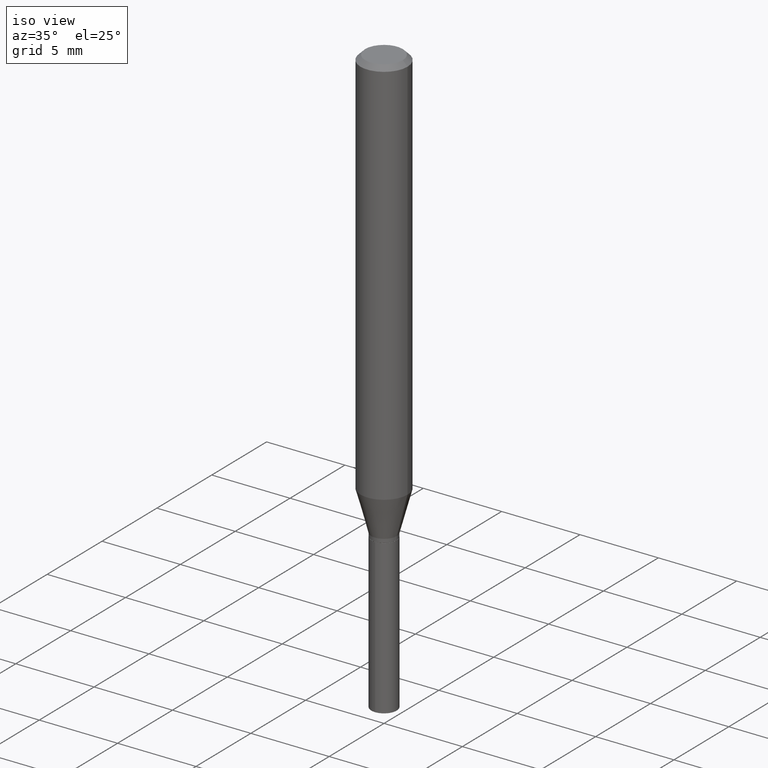
[diagram: clean part render]
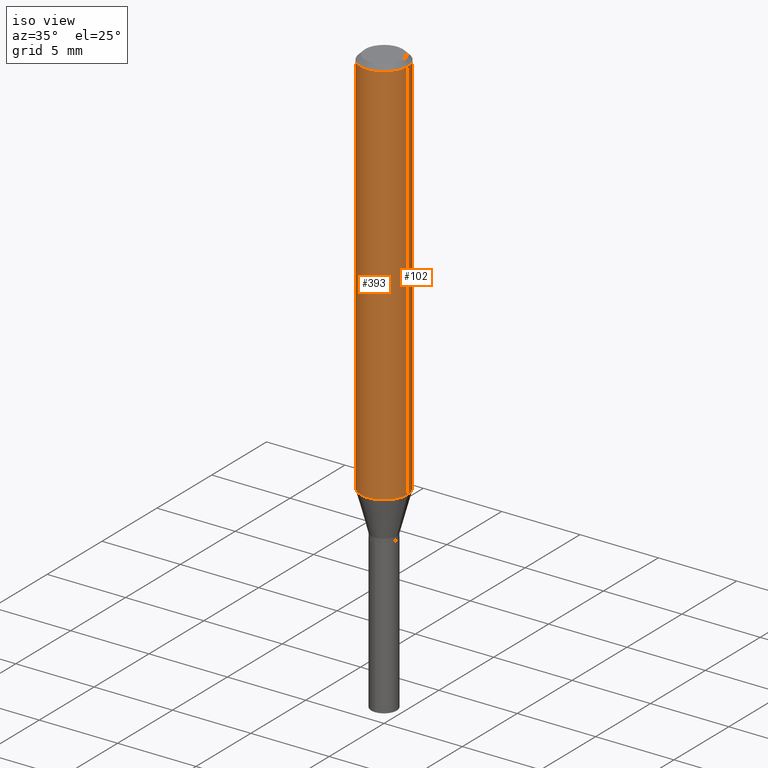
[diagram: same view with one multi-face feature highlighted, each face labeled with its STEP entity id]
A machine part, iso view. The highlighted faces form ONE feature: a constant-radius fillet chain: 2 tangent blend faces with common blend radius 1.4999 mm. The faces share edges in the B-rep.
Their STEP definitions:
[1] entity #102 (Cylinder):
#30 = AXIS2_PLACEMENT_3D ( 'NONE', #70, #67, #418 ) ;
#47 = ORIENTED_EDGE ( 'NONE', *, *, #278, .T. ) ;
#67 = DIRECTION ( 'NONE',  ( -2.445468806185136597E-29, 3.491481338843145583E-15, 1.000000000000000000 ) ) ;
#70 = CARTESIAN_POINT ( 'NONE',  ( 2.405301542264094135E-29, -3.434133131391878685E-15, -0.9835748205745047379 ) ) ;
#81 = CARTESIAN_POINT ( 'NONE',  ( 0.000000000000000000, 0.000000000000000000, 0.000000000000000000 ) ) ;
#102 = ADVANCED_FACE ( 'NONE', ( #394 ), #233, .T. ) ;
#138 = CIRCLE ( 'NONE', #30, 0.05905000000000011628 ) ;
#149 = VECTOR ( 'NONE', #328, 39.37007874015748143 ) ;
#179 = DIRECTION ( 'NONE',  ( -2.445468806185136877E-29, 3.491481338843145188E-15, 1.000000000000000000 ) ) ;
#182 = VERTEX_POINT ( 'NONE', #369 ) ;
#184 = EDGE_CURVE ( 'NONE', #439, #427, #284, .T. ) ;
#185 = AXIS2_PLACEMENT_3D ( 'NONE', #81, #272, #197 ) ;
#197 = DIRECTION ( 'NONE',  ( 1.000000000000000000, -6.982962677686266711E-15, 4.876176775795935793E-29 ) ) ;
#210 = EDGE_CURVE ( 'NONE', #182, #232, #281, .T. ) ;
#228 = DIRECTION ( 'NONE',  ( -2.445468806185136597E-29, 3.491481338843145583E-15, 1.000000000000000000 ) ) ;
#232 = VERTEX_POINT ( 'NONE', #248 ) ;
#233 = CYLINDRICAL_SURFACE ( 'NONE', #185, 0.05905000000000006077 ) ;
#234 = EDGE_LOOP ( 'NONE', ( #47, #260, #461, #306 ) ) ;
#248 = CARTESIAN_POINT ( 'NONE',  ( 0.05904999999999999832, -4.535783407291118600E-16, -0.01181000000000007218 ) ) ;
#250 = CARTESIAN_POINT ( 'NONE',  ( 0.05905000000000006077, -4.123439461173744764E-16, 2.879382386107503023E-30 ) ) ;
#260 = ORIENTED_EDGE ( 'NONE', *, *, #184, .T. ) ;
#272 = DIRECTION ( 'NONE',  ( -2.445468806185136597E-29, 3.491481338843145583E-15, 1.000000000000000000 ) ) ;
#278 = EDGE_CURVE ( 'NONE', #182, #439, #138, .T. ) ;
#281 = LINE ( 'NONE', #250, #149 ) ;
#284 = LINE ( 'NONE', #365, #381 ) ;
#306 = ORIENTED_EDGE ( 'NONE', *, *, #210, .F. ) ;
#327 = CIRCLE ( 'NONE', #383, 0.05904999999999999832 ) ;
#328 = DIRECTION ( 'NONE',  ( -2.445468806185136877E-29, 3.491481338843145188E-15, 1.000000000000000000 ) ) ;
#340 = CARTESIAN_POINT ( 'NONE',  ( -0.05905000000000011628, -3.014557645925538404E-15, -0.9835748205745047379 ) ) ;
#365 = CARTESIAN_POINT ( 'NONE',  ( -0.05905000000000006077, 4.195754854663395916E-16, -2.904631170795524694E-30 ) ) ;
#369 = CARTESIAN_POINT ( 'NONE',  ( 0.05905000000000011628, -3.846477077509253606E-15, -0.9835748205745047379 ) ) ;
#381 = VECTOR ( 'NONE', #179, 39.37007874015748143 ) ;
#383 = AXIS2_PLACEMENT_3D ( 'NONE', #398, #228, #390 ) ;
#390 = DIRECTION ( 'NONE',  ( 1.000000000000000000, -6.982962677686266711E-15, 0.000000000000000000 ) ) ;
#394 = FACE_OUTER_BOUND ( 'NONE', #234, .T. ) ;
#398 = CARTESIAN_POINT ( 'NONE',  ( 2.888098660104664204E-31, -4.123439461173780263E-17, -0.01181000000000007218 ) ) ;
#418 = DIRECTION ( 'NONE',  ( 1.000000000000000000, -6.982962677686266711E-15, 0.000000000000000000 ) ) ;
#427 = VERTEX_POINT ( 'NONE', #490 ) ;
#439 = VERTEX_POINT ( 'NONE', #340 ) ;
#461 = ORIENTED_EDGE ( 'NONE', *, *, #489, .F. ) ;
#489 = EDGE_CURVE ( 'NONE', #232, #427, #327, .T. ) ;
#490 = CARTESIAN_POINT ( 'NONE',  ( -0.05904999999999999832, -1.318108277535467925E-15, -0.01181000000000007218 ) ) ;
[2] entity #393 (Cylinder):
#18 = DIRECTION ( 'NONE',  ( -2.445468806185136597E-29, 3.491481338843145583E-15, 1.000000000000000000 ) ) ;
#48 = AXIS2_PLACEMENT_3D ( 'NONE', #192, #457, #119 ) ;
#51 = EDGE_CURVE ( 'NONE', #427, #232, #416, .T. ) ;
#82 = EDGE_LOOP ( 'NONE', ( #231, #429, #359, #403 ) ) ;
#119 = DIRECTION ( 'NONE',  ( 1.000000000000000000, -6.982962677686266711E-15, 0.000000000000000000 ) ) ;
#149 = VECTOR ( 'NONE', #328, 39.37007874015748143 ) ;
#157 = CARTESIAN_POINT ( 'NONE',  ( 2.888098660104664204E-31, -4.123439461173780263E-17, -0.01181000000000007218 ) ) ;
#169 = DIRECTION ( 'NONE',  ( 1.000000000000000000, -6.982962677686266711E-15, 0.000000000000000000 ) ) ;
#179 = DIRECTION ( 'NONE',  ( -2.445468806185136877E-29, 3.491481338843145188E-15, 1.000000000000000000 ) ) ;
#182 = VERTEX_POINT ( 'NONE', #369 ) ;
#184 = EDGE_CURVE ( 'NONE', #439, #427, #284, .T. ) ;
#189 = FACE_OUTER_BOUND ( 'NONE', #82, .T. ) ;
#192 = CARTESIAN_POINT ( 'NONE',  ( 2.405301542264094135E-29, -3.434133131391878685E-15, -0.9835748205745047379 ) ) ;
#210 = EDGE_CURVE ( 'NONE', #182, #232, #281, .T. ) ;
#219 = AXIS2_PLACEMENT_3D ( 'NONE', #411, #484, #257 ) ;
#231 = ORIENTED_EDGE ( 'NONE', *, *, #184, .F. ) ;
#232 = VERTEX_POINT ( 'NONE', #248 ) ;
#248 = CARTESIAN_POINT ( 'NONE',  ( 0.05904999999999999832, -4.535783407291118600E-16, -0.01181000000000007218 ) ) ;
#250 = CARTESIAN_POINT ( 'NONE',  ( 0.05905000000000006077, -4.123439461173744764E-16, 2.879382386107503023E-30 ) ) ;
#257 = DIRECTION ( 'NONE',  ( 1.000000000000000000, -6.982962677686266711E-15, 4.876176775795935793E-29 ) ) ;
#281 = LINE ( 'NONE', #250, #149 ) ;
#284 = LINE ( 'NONE', #365, #381 ) ;
#328 = DIRECTION ( 'NONE',  ( -2.445468806185136877E-29, 3.491481338843145188E-15, 1.000000000000000000 ) ) ;
#340 = CARTESIAN_POINT ( 'NONE',  ( -0.05905000000000011628, -3.014557645925538404E-15, -0.9835748205745047379 ) ) ;
#359 = ORIENTED_EDGE ( 'NONE', *, *, #210, .T. ) ;
#365 = CARTESIAN_POINT ( 'NONE',  ( -0.05905000000000006077, 4.195754854663395916E-16, -2.904631170795524694E-30 ) ) ;
#369 = CARTESIAN_POINT ( 'NONE',  ( 0.05905000000000011628, -3.846477077509253606E-15, -0.9835748205745047379 ) ) ;
#376 = CYLINDRICAL_SURFACE ( 'NONE', #219, 0.05905000000000006077 ) ;
#381 = VECTOR ( 'NONE', #179, 39.37007874015748143 ) ;
#393 = ADVANCED_FACE ( 'NONE', ( #189 ), #376, .T. ) ;
#403 = ORIENTED_EDGE ( 'NONE', *, *, #51, .F. ) ;
#411 = CARTESIAN_POINT ( 'NONE',  ( 0.000000000000000000, 0.000000000000000000, 0.000000000000000000 ) ) ;
#416 = CIRCLE ( 'NONE', #433, 0.05904999999999999832 ) ;
#427 = VERTEX_POINT ( 'NONE', #490 ) ;
#429 = ORIENTED_EDGE ( 'NONE', *, *, #475, .T. ) ;
#433 = AXIS2_PLACEMENT_3D ( 'NONE', #157, #18, #169 ) ;
#439 = VERTEX_POINT ( 'NONE', #340 ) ;
#457 = DIRECTION ( 'NONE',  ( -2.445468806185136597E-29, 3.491481338843145583E-15, 1.000000000000000000 ) ) ;
#459 = CIRCLE ( 'NONE', #48, 0.05905000000000011628 ) ;
#475 = EDGE_CURVE ( 'NONE', #439, #182, #459, .T. ) ;
#484 = DIRECTION ( 'NONE',  ( -2.445468806185136597E-29, 3.491481338843145583E-15, 1.000000000000000000 ) ) ;
#490 = CARTESIAN_POINT ( 'NONE',  ( -0.05904999999999999832, -1.318108277535467925E-15, -0.01181000000000007218 ) ) ;